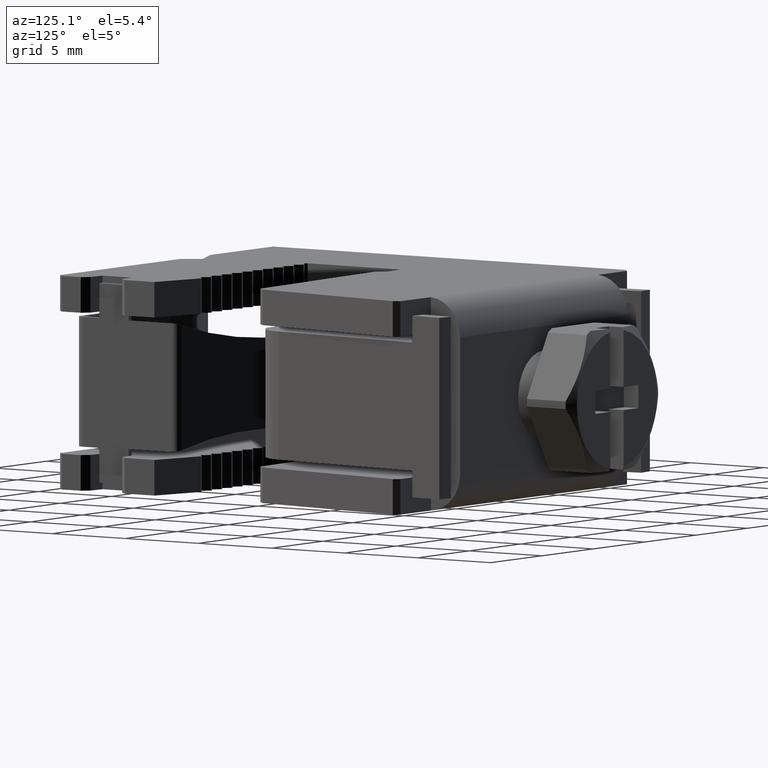
[diagram: clean part render]
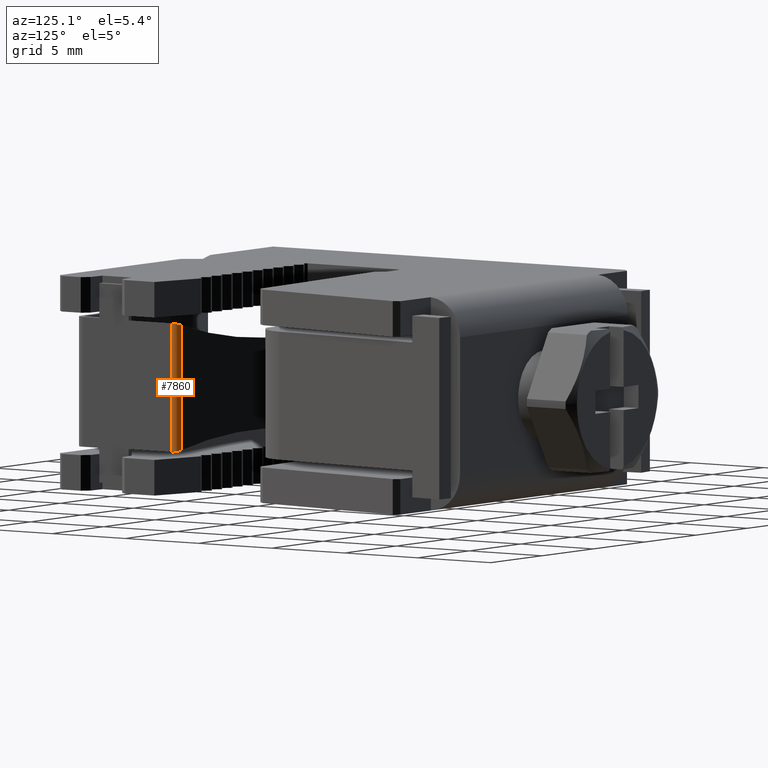
[diagram: same view with one face highlighted and labeled with its STEP entity id]
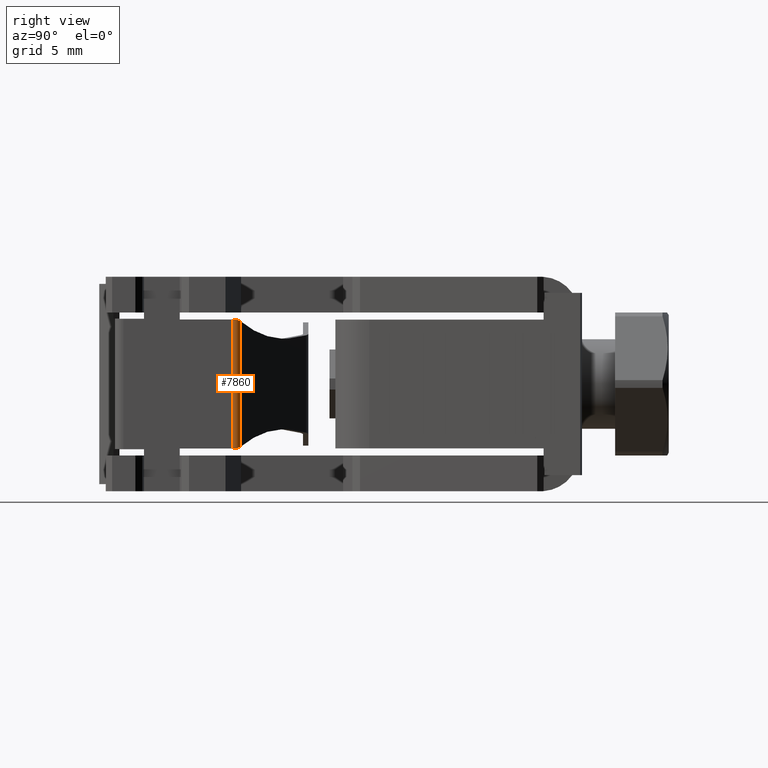
[diagram: same view with one face highlighted and labeled with its STEP entity id]
A machine part, auxiliary view. The second image highlights one B-rep face of the part: STEP entity #7860.
A second angle (right view) of the same face is appended — the face is thin or edge-on in the first view.
In plain terms, the highlighted cylindrical surface (edge-blend (fillet) strip) has radius 0.5 mm, axis along (-0, -0, -1).
Its self-contained STEP definition (entity closure, byte-faithful):
#601 = CARTESIAN_POINT ( 'NONE',  ( 17.15677823012341800, 6.274517575530720300, 9.514841473297554600 ) ) ;
#620 = CARTESIAN_POINT ( 'NONE',  ( 17.40677823012386200, 5.841504873637914500, 9.611427157292142800 ) ) ;
#627 = CARTESIAN_POINT ( 'NONE',  ( 17.40677823012386600, 5.841504873637914500, 2.388605296606082000 ) ) ;
#694 = CARTESIAN_POINT ( 'NONE',  ( 17.15677823012342200, 6.274517575530719400, 2.485268378536110000 ) ) ;
#2417 = AXIS2_PLACEMENT_3D ( 'NONE', #8511, #8521, #8522 ) ;
#2475 = VECTOR ( 'NONE', #3549, 1000.000000000000000 ) ;
#2477 = VECTOR ( 'NONE', #3572, 1000.000000000000000 ) ;
#3090 = EDGE_CURVE ( 'NONE', #6698, #6654, #3537, .T. ) ;
#3093 = EDGE_CURVE ( 'NONE', #6662, #6698, #9702, .T. ) ;
#3108 = EDGE_CURVE ( 'NONE', #6630, #6662, #3565, .T. ) ;
#3113 = EDGE_CURVE ( 'NONE', #6654, #6630, #9703, .T. ) ;
#3506 = CARTESIAN_POINT ( 'NONE',  ( 17.40677823012386600, 5.931430184990549700, 2.388605296606082000 ) ) ;
#3508 = CARTESIAN_POINT ( 'NONE',  ( 17.15677823012342200, 6.274517575530719400, 2.485268378536110000 ) ) ;
#3511 = CARTESIAN_POINT ( 'NONE',  ( 17.29396892102158700, 6.169643910862193400, 2.432927487360088100 ) ) ;
#3524 = CARTESIAN_POINT ( 'NONE',  ( 17.40677823012386600, 5.841504873637914500, 2.388605296606082000 ) ) ;
#3526 = CARTESIAN_POINT ( 'NONE',  ( 17.15677823012342200, 6.274517575530720300, 11.59999999999999300 ) ) ;
#3532 = CARTESIAN_POINT ( 'NONE',  ( 17.38214010090635500, 6.019333304082579200, 2.398435587563534400 ) ) ;
#3534 = CARTESIAN_POINT ( 'NONE',  ( 17.23071920759194200, 6.231827732285161400, 2.457423188784406700 ) ) ;
#3537 = LINE ( 'NONE', #3526, #2475 ) ;
#3549 = DIRECTION ( 'NONE',  ( 0.0000000000000000000, 0.0000000000000000000, 1.000000000000000000 ) ) ;
#3565 = LINE ( 'NONE', #3571, #2477 ) ;
#3571 = CARTESIAN_POINT ( 'NONE',  ( 17.40677823012386600, 5.841504873637914500, 11.59999999999999300 ) ) ;
#3572 = DIRECTION ( 'NONE',  ( -0.0000000000000000000, -0.0000000000000000000, -1.000000000000000000 ) ) ;
#3605 = CARTESIAN_POINT ( 'NONE',  ( 17.23089717880943500, 6.231724980554831800, 9.542732166268916000 ) ) ;
#3606 = CARTESIAN_POINT ( 'NONE',  ( 17.38201442021945200, 6.019599005453534900, 9.601555685689410400 ) ) ;
#3607 = CARTESIAN_POINT ( 'NONE',  ( 17.40677823012386600, 5.931676168961030400, 9.611427157292144600 ) ) ;
#3615 = CARTESIAN_POINT ( 'NONE',  ( 17.40677823012386200, 5.841504873637914500, 9.611427157292142800 ) ) ;
#3630 = CARTESIAN_POINT ( 'NONE',  ( 17.15677823012341800, 6.274517575530720300, 9.514841473297554600 ) ) ;
#3633 = CARTESIAN_POINT ( 'NONE',  ( 17.29394302871257600, 6.169636516271762800, 9.567131396569562800 ) ) ;
#4827 = ORIENTED_EDGE ( 'NONE', *, *, #3108, .T. ) ;
#4832 = ORIENTED_EDGE ( 'NONE', *, *, #3093, .T. ) ;
#4864 = ORIENTED_EDGE ( 'NONE', *, *, #3113, .T. ) ;
#4908 = ORIENTED_EDGE ( 'NONE', *, *, #3090, .T. ) ;
#6359 = EDGE_LOOP ( 'NONE', ( #4827, #4832, #4908, #4864 ) ) ;
#6630 = VERTEX_POINT ( 'NONE', #620 ) ;
#6654 = VERTEX_POINT ( 'NONE', #601 ) ;
#6662 = VERTEX_POINT ( 'NONE', #627 ) ;
#6698 = VERTEX_POINT ( 'NONE', #694 ) ;
#7860 = ADVANCED_FACE ( 'NONE', ( #8514 ), #8509, .T. ) ;
#8509 = CYLINDRICAL_SURFACE ( 'NONE', #2417, 0.5000000000005694300 ) ;
#8511 = CARTESIAN_POINT ( 'NONE',  ( 16.90677823012329700, 5.841504873637914500, 11.59999999999999300 ) ) ;
#8514 = FACE_OUTER_BOUND ( 'NONE', #6359, .T. ) ;
#8521 = DIRECTION ( 'NONE',  ( -0.0000000000000000000, -0.0000000000000000000, -1.000000000000000000 ) ) ;
#8522 = DIRECTION ( 'NONE',  ( -1.000000000000000000, 0.0000000000000000000, 0.0000000000000000000 ) ) ;
#9702 = B_SPLINE_CURVE_WITH_KNOTS ( 'NONE', 3,
 ( #3524, #3506, #3532, #3511, #3534, #3508 ),
 .UNSPECIFIED., .F., .F.,
 ( 4, 2, 4 ),
 ( 0.0000000000000000000, 0.0002658147961215231000, 0.0005316295922430462100 ),
 .UNSPECIFIED. ) ;
#9703 = B_SPLINE_CURVE_WITH_KNOTS ( 'NONE', 3,
 ( #3630, #3605, #3633, #3606, #3607, #3615 ),
 .UNSPECIFIED., .F., .F.,
 ( 4, 2, 4 ),
 ( 3.878959614448864200E-018, 0.0002664143879645204600, 0.0005328287759290370100 ),
 .UNSPECIFIED. ) ;